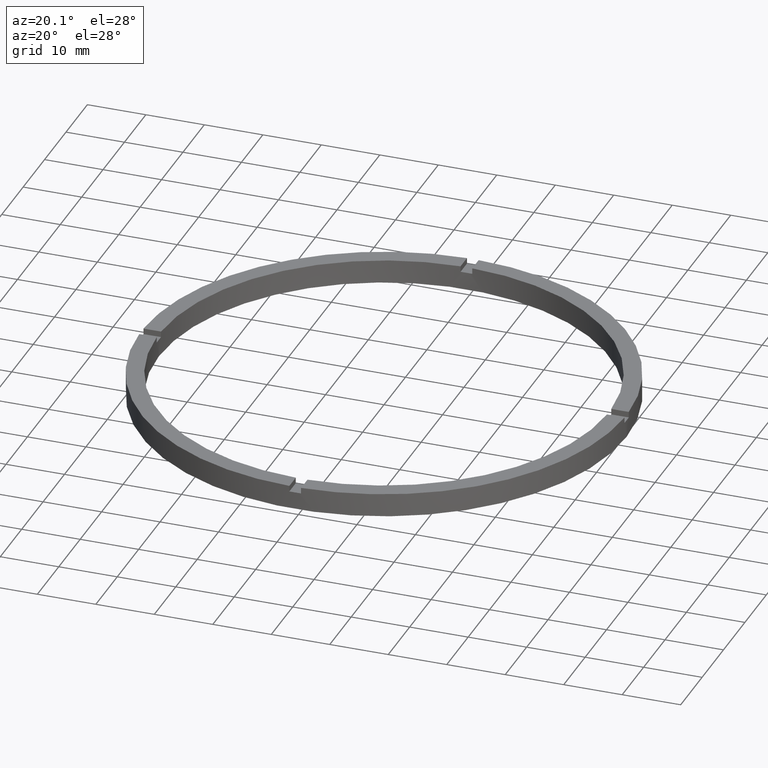
[diagram: clean part render]
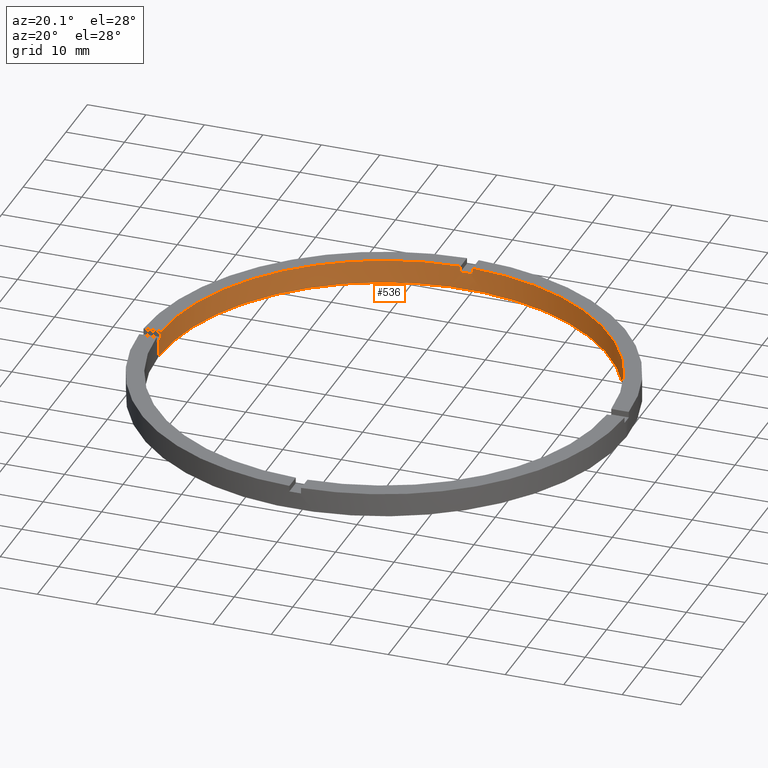
[diagram: same view with one face highlighted and labeled with its STEP entity id]
A machine part, auxiliary view. The second image highlights one B-rep face of the part: STEP entity #536.
In plain terms, the highlighted cylindrical surface (partial cylindrical patch) has radius 38.5 mm, axis along (-0, -0, -1).
Its self-contained STEP definition (entity closure, byte-faithful):
#8 = AXIS2_PLACEMENT_3D ( 'NONE', #368, #763, #560 ) ;
#12 = EDGE_CURVE ( 'NONE', #303, #117, #732, .T. ) ;
#18 = AXIS2_PLACEMENT_3D ( 'NONE', #681, #366, #49 ) ;
#20 = AXIS2_PLACEMENT_3D ( 'NONE', #755, #375, #747 ) ;
#26 = CARTESIAN_POINT ( 'NONE',  ( 0.000000000000000000, 0.000000000000000000, 4.000000000000000000 ) ) ;
#36 = DIRECTION ( 'NONE',  ( -0.000000000000000000, -0.000000000000000000, -1.000000000000000000 ) ) ;
#41 = CARTESIAN_POINT ( 'NONE',  ( 0.9999999999999742428, 38.48701079585163143, 3.000000000000000000 ) ) ;
#47 = CARTESIAN_POINT ( 'NONE',  ( 38.50000000000000000, 4.714890176717309515E-15, 3.000000000000000000 ) ) ;
#49 = DIRECTION ( 'NONE',  ( 1.000000000000000000, 0.000000000000000000, 0.000000000000000000 ) ) ;
#52 = VECTOR ( 'NONE', #738, 1000.000000000000000 ) ;
#69 = EDGE_LOOP ( 'NONE', ( #428, #361, #370, #701, #675, #682, #391, #673, #163, #395, #127, #403 ) ) ;
#74 = CIRCLE ( 'NONE', #779, 38.50000000000000000 ) ;
#95 = VERTEX_POINT ( 'NONE', #537 ) ;
#99 = VERTEX_POINT ( 'NONE', #733 ) ;
#108 = DIRECTION ( 'NONE',  ( -0.000000000000000000, -0.000000000000000000, -1.000000000000000000 ) ) ;
#110 = EDGE_CURVE ( 'NONE', #95, #387, #211, .T. ) ;
#117 = VERTEX_POINT ( 'NONE', #647 ) ;
#127 = ORIENTED_EDGE ( 'NONE', *, *, #741, .T. ) ;
#138 = EDGE_CURVE ( 'NONE', #461, #117, #702, .T. ) ;
#145 = VERTEX_POINT ( 'NONE', #285 ) ;
#163 = ORIENTED_EDGE ( 'NONE', *, *, #636, .F. ) ;
#177 = CARTESIAN_POINT ( 'NONE',  ( -1.000000000000025757, 38.48701079585163143, 4.000000000000000000 ) ) ;
#202 = VERTEX_POINT ( 'NONE', #518 ) ;
#211 = CIRCLE ( 'NONE', #479, 38.50000000000000000 ) ;
#233 = CIRCLE ( 'NONE', #20, 38.50000000000000000 ) ;
#235 = AXIS2_PLACEMENT_3D ( 'NONE', #641, #108, #782 ) ;
#253 = DIRECTION ( 'NONE',  ( 1.000000000000000000, 0.000000000000000000, 0.000000000000000000 ) ) ;
#261 = DIRECTION ( 'NONE',  ( 1.000000000000000000, 0.000000000000000000, 0.000000000000000000 ) ) ;
#269 = CARTESIAN_POINT ( 'NONE',  ( 0.9999999999999742428, 38.48701079585163143, 4.000000000000000000 ) ) ;
#282 = CARTESIAN_POINT ( 'NONE',  ( -38.50000000000000000, 0.000000000000000000, 4.000000000000000000 ) ) ;
#285 = CARTESIAN_POINT ( 'NONE',  ( -1.000000000000025757, 38.48701079585163143, 4.000000000000000000 ) ) ;
#287 = EDGE_CURVE ( 'NONE', #303, #371, #233, .T. ) ;
#294 = CARTESIAN_POINT ( 'NONE',  ( 38.48701079585163853, 0.9999999999998432365, 4.000000000000000000 ) ) ;
#296 = CARTESIAN_POINT ( 'NONE',  ( 0.000000000000000000, 0.000000000000000000, 0.000000000000000000 ) ) ;
#301 = EDGE_CURVE ( 'NONE', #348, #412, #746, .T. ) ;
#303 = VERTEX_POINT ( 'NONE', #41 ) ;
#313 = AXIS2_PLACEMENT_3D ( 'NONE', #26, #353, #253 ) ;
#316 = VECTOR ( 'NONE', #538, 1000.000000000000000 ) ;
#320 = LINE ( 'NONE', #282, #604 ) ;
#328 = LINE ( 'NONE', #570, #316 ) ;
#332 = VECTOR ( 'NONE', #502, 1000.000000000000000 ) ;
#334 = FACE_OUTER_BOUND ( 'NONE', #69, .T. ) ;
#348 = VERTEX_POINT ( 'NONE', #47 ) ;
#350 = CARTESIAN_POINT ( 'NONE',  ( 38.48701079585163853, 0.9999999999998432365, 4.000000000000000000 ) ) ;
#353 = DIRECTION ( 'NONE',  ( 0.000000000000000000, 0.000000000000000000, 1.000000000000000000 ) ) ;
#360 = DIRECTION ( 'NONE',  ( 1.000000000000000000, 0.000000000000000000, 0.000000000000000000 ) ) ;
#361 = ORIENTED_EDGE ( 'NONE', *, *, #301, .T. ) ;
#366 = DIRECTION ( 'NONE',  ( 0.000000000000000000, 0.000000000000000000, 1.000000000000000000 ) ) ;
#368 = CARTESIAN_POINT ( 'NONE',  ( 0.000000000000000000, 0.000000000000000000, 3.000000000000000000 ) ) ;
#370 = ORIENTED_EDGE ( 'NONE', *, *, #761, .F. ) ;
#371 = VERTEX_POINT ( 'NONE', #680 ) ;
#375 = DIRECTION ( 'NONE',  ( 0.000000000000000000, -0.000000000000000000, 1.000000000000000000 ) ) ;
#387 = VERTEX_POINT ( 'NONE', #705 ) ;
#391 = ORIENTED_EDGE ( 'NONE', *, *, #531, .F. ) ;
#395 = ORIENTED_EDGE ( 'NONE', *, *, #497, .T. ) ;
#403 = ORIENTED_EDGE ( 'NONE', *, *, #110, .F. ) ;
#404 = CARTESIAN_POINT ( 'NONE',  ( 38.48701079585163853, 0.9999999999998432365, 3.000000000000000000 ) ) ;
#412 = VERTEX_POINT ( 'NONE', #404 ) ;
#427 = CARTESIAN_POINT ( 'NONE',  ( -38.50000000000000000, 0.000000000000000000, 3.000000000000000000 ) ) ;
#428 = ORIENTED_EDGE ( 'NONE', *, *, #556, .F. ) ;
#433 = DIRECTION ( 'NONE',  ( 0.000000000000000000, 0.000000000000000000, 1.000000000000000000 ) ) ;
#457 = VECTOR ( 'NONE', #557, 1000.000000000000000 ) ;
#461 = VERTEX_POINT ( 'NONE', #350 ) ;
#479 = AXIS2_PLACEMENT_3D ( 'NONE', #296, #433, #360 ) ;
#497 = EDGE_CURVE ( 'NONE', #99, #634, #74, .T. ) ;
#502 = DIRECTION ( 'NONE',  ( -0.000000000000000000, -0.000000000000000000, -1.000000000000000000 ) ) ;
#518 = CARTESIAN_POINT ( 'NONE',  ( -38.48701079585163143, 0.9999999999999715783, 4.000000000000000000 ) ) ;
#531 = EDGE_CURVE ( 'NONE', #145, #371, #577, .T. ) ;
#536 = ADVANCED_FACE ( 'NONE', ( #334 ), #567, .F. ) ;
#537 = CARTESIAN_POINT ( 'NONE',  ( 38.50000000000000000, 4.714890176717309515E-15, 0.000000000000000000 ) ) ;
#538 = DIRECTION ( 'NONE',  ( 0.000000000000000000, 0.000000000000000000, 1.000000000000000000 ) ) ;
#556 = EDGE_CURVE ( 'NONE', #348, #95, #591, .T. ) ;
#557 = DIRECTION ( 'NONE',  ( 0.000000000000000000, 0.000000000000000000, 1.000000000000000000 ) ) ;
#560 = DIRECTION ( 'NONE',  ( 1.000000000000000000, 0.000000000000000000, 0.000000000000000000 ) ) ;
#567 = CYLINDRICAL_SURFACE ( 'NONE', #235, 38.50000000000000000 ) ;
#570 = CARTESIAN_POINT ( 'NONE',  ( -38.48701079585163143, 0.9999999999999715783, 4.000000000000000000 ) ) ;
#577 = LINE ( 'NONE', #177, #593 ) ;
#580 = DIRECTION ( 'NONE',  ( -0.000000000000000000, -0.000000000000000000, -1.000000000000000000 ) ) ;
#584 = LINE ( 'NONE', #294, #332 ) ;
#591 = LINE ( 'NONE', #602, #52 ) ;
#592 = CIRCLE ( 'NONE', #18, 38.50000000000000000 ) ;
#593 = VECTOR ( 'NONE', #580, 1000.000000000000000 ) ;
#595 = EDGE_CURVE ( 'NONE', #145, #202, #592, .T. ) ;
#602 = CARTESIAN_POINT ( 'NONE',  ( 38.50000000000000000, 4.714890176717309515E-15, 4.000000000000000000 ) ) ;
#604 = VECTOR ( 'NONE', #36, 1000.000000000000000 ) ;
#634 = VERTEX_POINT ( 'NONE', #427 ) ;
#636 = EDGE_CURVE ( 'NONE', #99, #202, #328, .T. ) ;
#641 = CARTESIAN_POINT ( 'NONE',  ( 0.000000000000000000, 0.000000000000000000, 4.000000000000000000 ) ) ;
#647 = CARTESIAN_POINT ( 'NONE',  ( 0.9999999999999742428, 38.48701079585163143, 4.000000000000000000 ) ) ;
#669 = CARTESIAN_POINT ( 'NONE',  ( 0.000000000000000000, 0.000000000000000000, 3.000000000000000000 ) ) ;
#673 = ORIENTED_EDGE ( 'NONE', *, *, #595, .T. ) ;
#675 = ORIENTED_EDGE ( 'NONE', *, *, #12, .F. ) ;
#680 = CARTESIAN_POINT ( 'NONE',  ( -1.000000000000025757, 38.48701079585163143, 3.000000000000000000 ) ) ;
#681 = CARTESIAN_POINT ( 'NONE',  ( 0.000000000000000000, 0.000000000000000000, 4.000000000000000000 ) ) ;
#682 = ORIENTED_EDGE ( 'NONE', *, *, #287, .T. ) ;
#701 = ORIENTED_EDGE ( 'NONE', *, *, #138, .T. ) ;
#702 = CIRCLE ( 'NONE', #313, 38.50000000000000000 ) ;
#705 = CARTESIAN_POINT ( 'NONE',  ( -38.50000000000000000, 0.000000000000000000, 0.000000000000000000 ) ) ;
#732 = LINE ( 'NONE', #269, #457 ) ;
#733 = CARTESIAN_POINT ( 'NONE',  ( -38.48701079585163143, 0.9999999999999715783, 3.000000000000000000 ) ) ;
#738 = DIRECTION ( 'NONE',  ( -0.000000000000000000, -0.000000000000000000, -1.000000000000000000 ) ) ;
#741 = EDGE_CURVE ( 'NONE', #634, #387, #320, .T. ) ;
#746 = CIRCLE ( 'NONE', #8, 38.50000000000000000 ) ;
#747 = DIRECTION ( 'NONE',  ( 1.000000000000000000, 0.000000000000000000, 0.000000000000000000 ) ) ;
#755 = CARTESIAN_POINT ( 'NONE',  ( 0.000000000000000000, 0.000000000000000000, 3.000000000000000000 ) ) ;
#761 = EDGE_CURVE ( 'NONE', #461, #412, #584, .T. ) ;
#763 = DIRECTION ( 'NONE',  ( 0.000000000000000000, 0.000000000000000000, 1.000000000000000000 ) ) ;
#772 = DIRECTION ( 'NONE',  ( 0.000000000000000000, 0.000000000000000000, 1.000000000000000000 ) ) ;
#779 = AXIS2_PLACEMENT_3D ( 'NONE', #669, #772, #261 ) ;
#782 = DIRECTION ( 'NONE',  ( -1.000000000000000000, 0.000000000000000000, 0.000000000000000000 ) ) ;